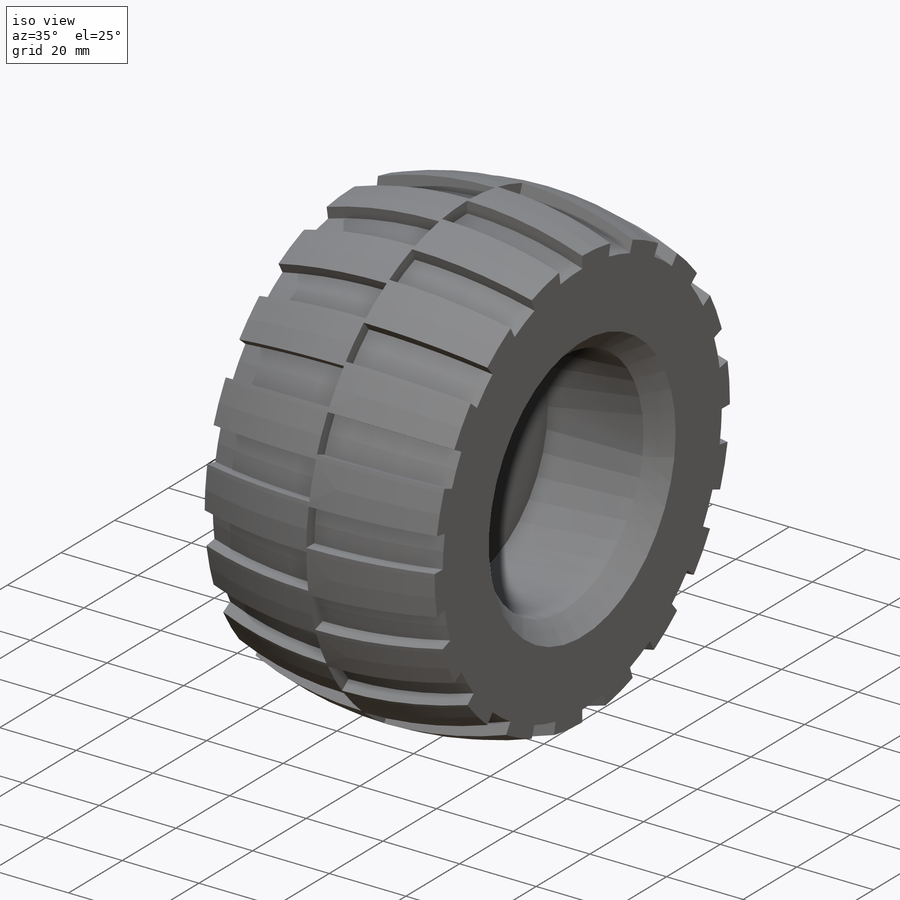
[diagram: iso view]
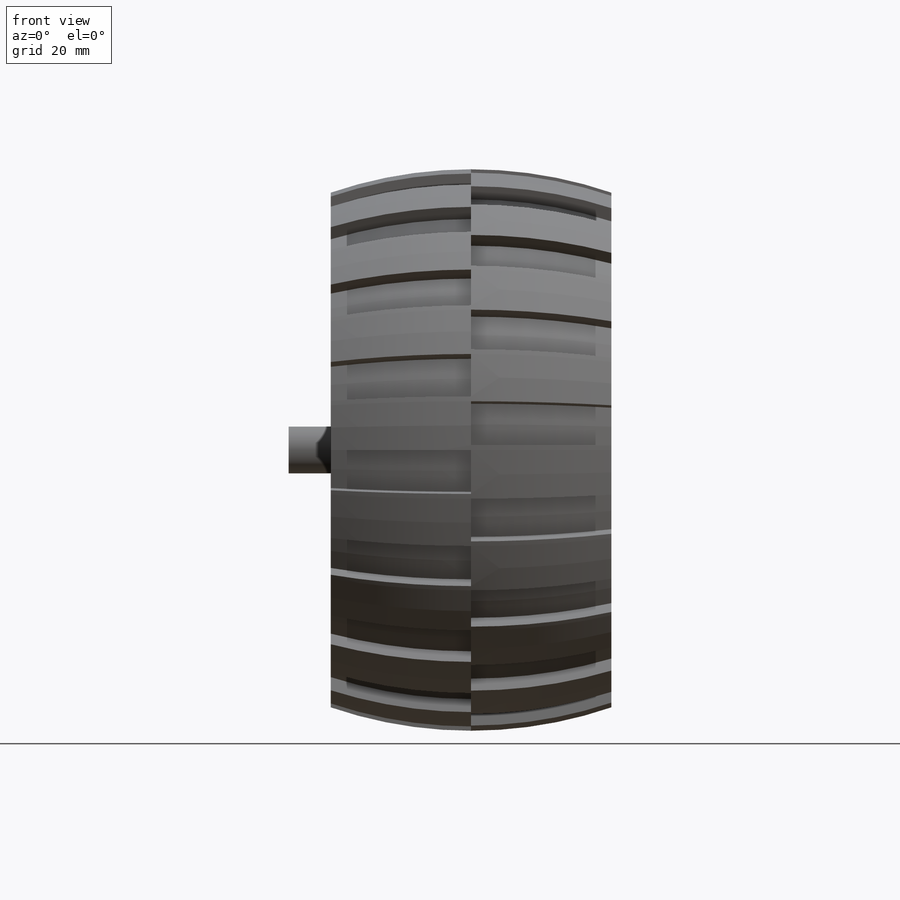
[diagram: front view]
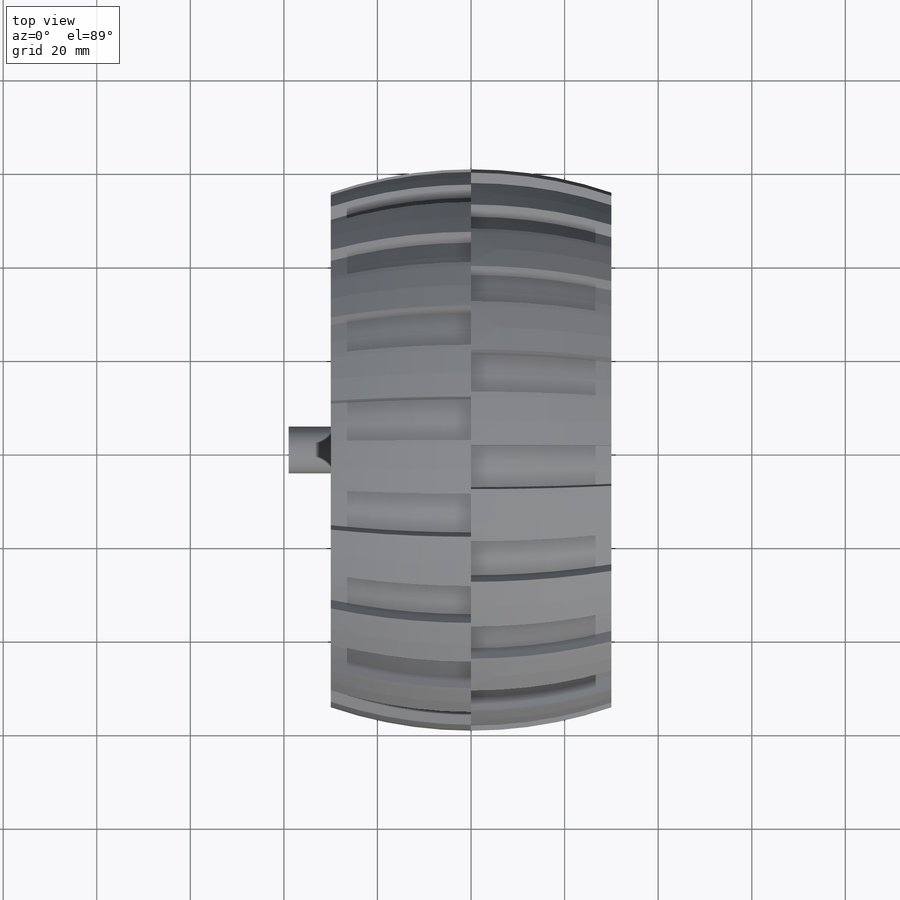
[diagram: top view]
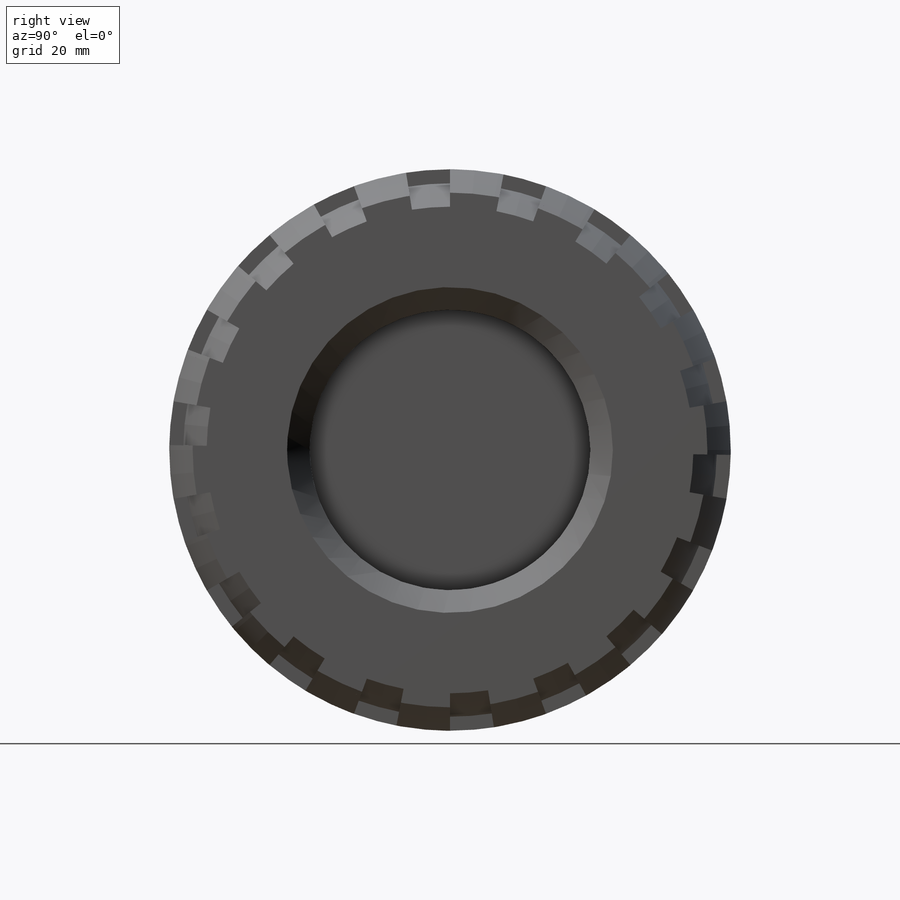
[diagram: right view]
SOLIDWORKS PART (.sldprt)
format: sldprt  version: not decoded by parser v0  size: 383,488 bytes
history: native  units: mm
features: sketch x5, cut_revolve x2, pattern_circular x2, extrude x2, material x1, revolve x1, plane x1 (+13 scaffold rows collapsed)
feature tree (27):
  scaffold x13  (default folders/planes/origin — collapsed)
  material  "Material <not specified>"
  sketch  "Sketch1"  dims[D1=30.0mm D2=60.0mm D3=60.0mm D4=55.0mm D5=5.0mm]
  revolve  "Revolve1"  Angle=360deg
  sketch  "Sketch2"  dims[D1=3.0mm]
  cut_revolve  "Cut-Revolve2"  Angle=9deg
  plane  "Plane1"
  pattern_circular  "CirPattern2"  Count=18 Angle=360deg
  sketch  "Sketch5"  dims[D1=3.0mm]
  cut_revolve  "Cut-Revolve3"  Angle=9deg
  pattern_circular  "CirPattern3"  Count=18 Angle=360deg
  sketch  "Sketch9"
  extrude  "Boss-Extrude2"  Depth=25mm
  sketch  "Sketch10"  dims[D1=10.0mm]
  extrude  "Boss-Extrude3"  Depth=14mm
decode coverage: 11 of 12 modeling features carry decoded parameters
note: suppression state not decoded; provenance and decode notes live in map.json
